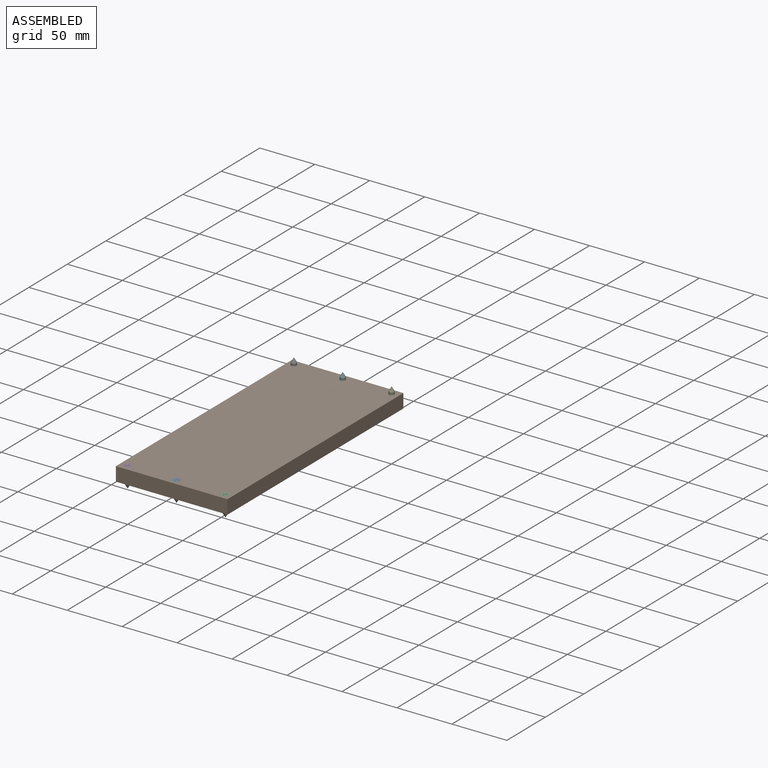
[diagram: assembled view]
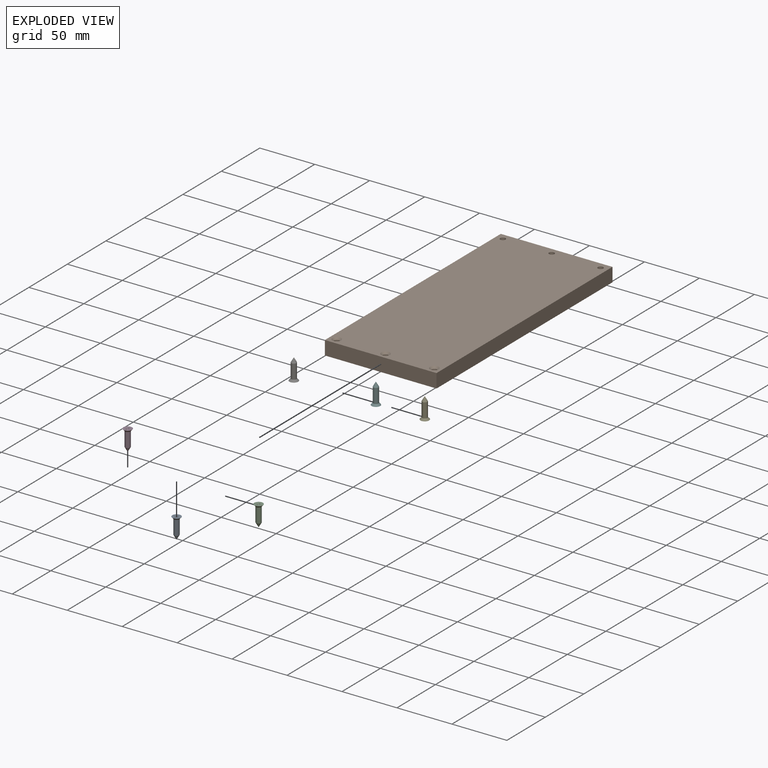
[diagram: exploded view]
GUIDED TOUR — MATED ASSEMBLY (Onshape document e38c5504253ca1b7ba571433, AutoMate assembly e38c5504253ca1b7ba571433_51430d996c4cda1efdbf5a8e_9bc8269e1de86b011c5c4cc2_default)

This assembly has 7 components, labeled P0..P6 below (a component is one placed occurrence of a part; the same part can appear more than once), held together by 2 mates. A mate is a constraint between two components; its type names the relative motion it leaves free:
  FASTENED — locks the two components together rigidly (no relative motion).
Axis/direction vectors are unit vectors and 'through' points are millimeter coordinates, both in the assembly's world frame.

MATES
  1. FASTENED "Fastened 1": P3 <-> P1, direction (0.000, 0.000, 1.000) through (-44.45, -107.95, 12.70) mm
  2. FASTENED "Fastened 2": P6 <-> P1, direction (0.000, 0.000, -1.000) through (-44.45, 107.95, 0.00) mm

ASSEMBLY ORDER
  1. P6 — the base component [order verified]
  2. P5 [order verified]
  3. P4 [order verified]
  4. P3 [order verified]
  5. P2 [order verified]
  6. P0 [order verified]
  7. P1 [order verified]
(P1 verified with a relaxed clearance tolerance: the source model stores slight part interference there.)
Order-tag legend:
  [order verified] — this step's position reverses a verified removal order: the component was checked to insert without passing through the ones already placed.

Of the 7 components, 1 carries the full construction recipe — the FeatureScript program that regenerates the part's solid from scratch; the rest are supplied as boundary geometry only.
Each toured component is shown spotlighted twice — in the assembled view, then in the exploded view, where a leader line traces a displaced component back to its assembled socket (saturated green if recipe-attached, orange if geometry-only; every other component desaturated gray) — followed by its recipe or geometry summary and the mates that hold it.
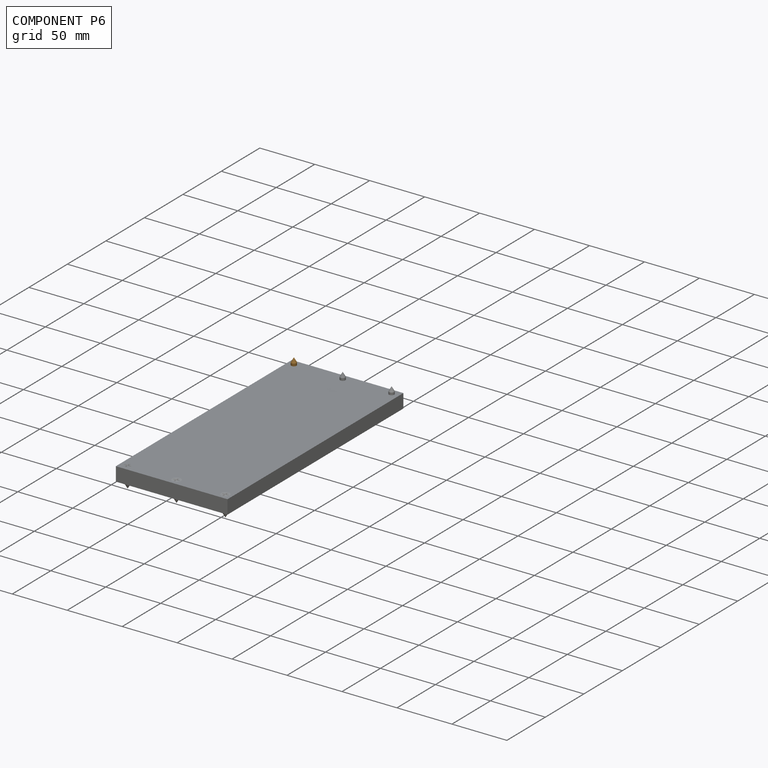
[diagram: component P6 — assembled]
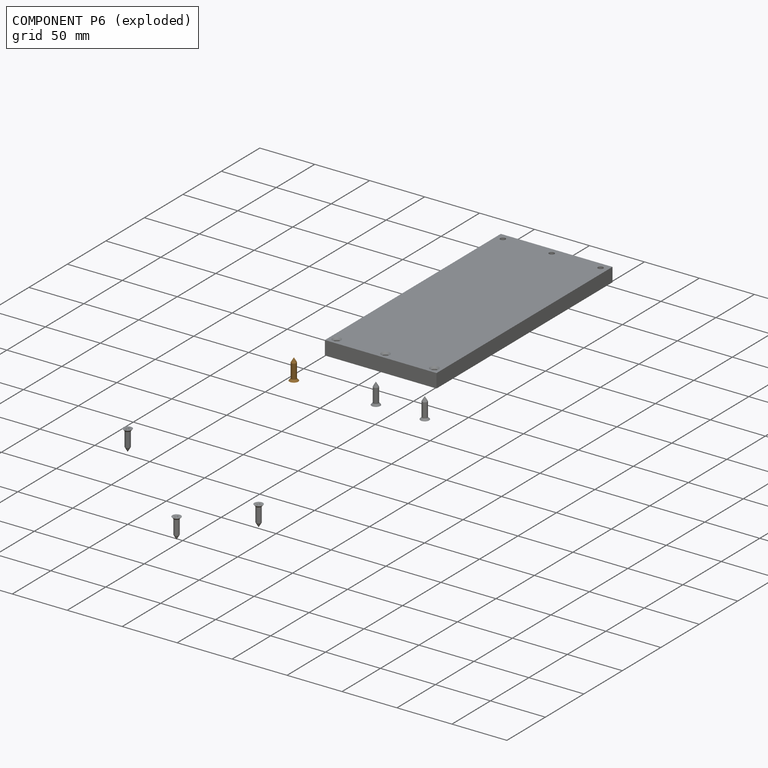
[diagram: component P6 — exploded]
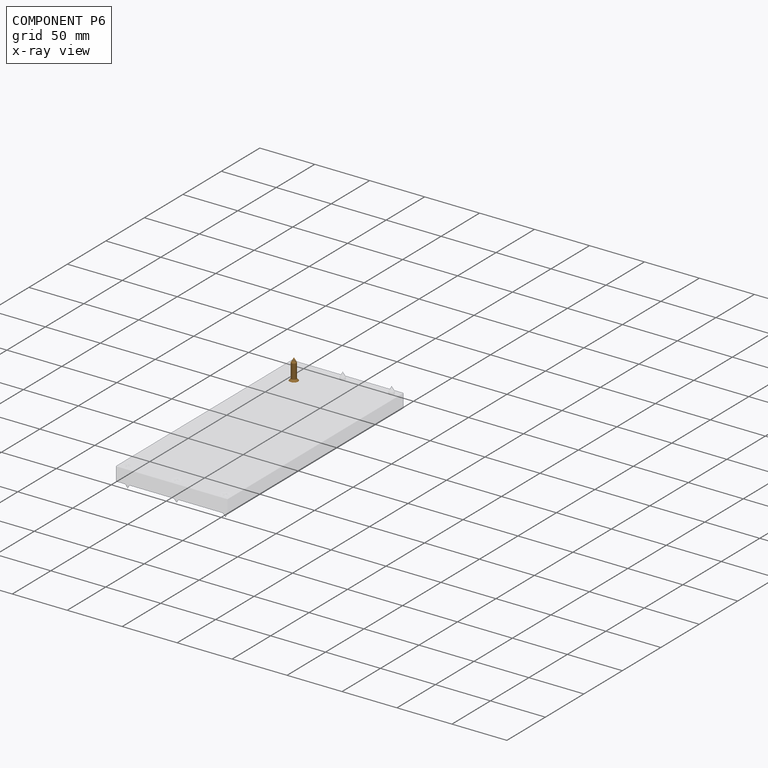
[diagram: component P6 — x-ray view]
COMPONENT P6 — geometry summary (no construction recipe available for this part):
  bounding box: 19.1 x 8.0 x 8.0 mm
  B-rep topology: 1 solid, 49 faces, 221 edges
  volume: 307 mm^3 (25% of its bounding box)
  symmetry: 4-fold rotationally symmetric about the z axis; mirror-symmetric across its x mid-plane, y mid-plane
Held by: FASTENED mate "Fastened 2" to P1.
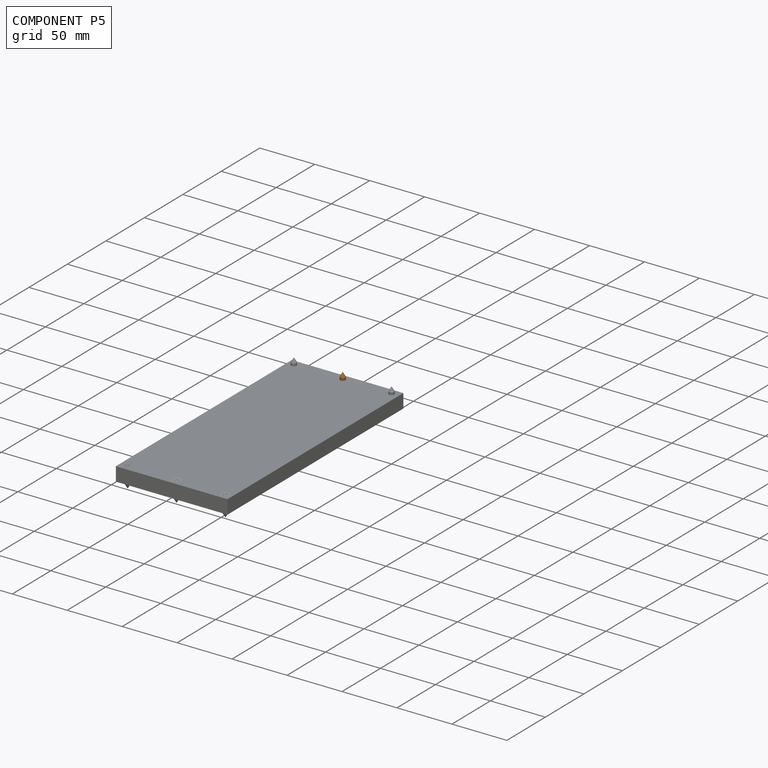
[diagram: component P5 — assembled]
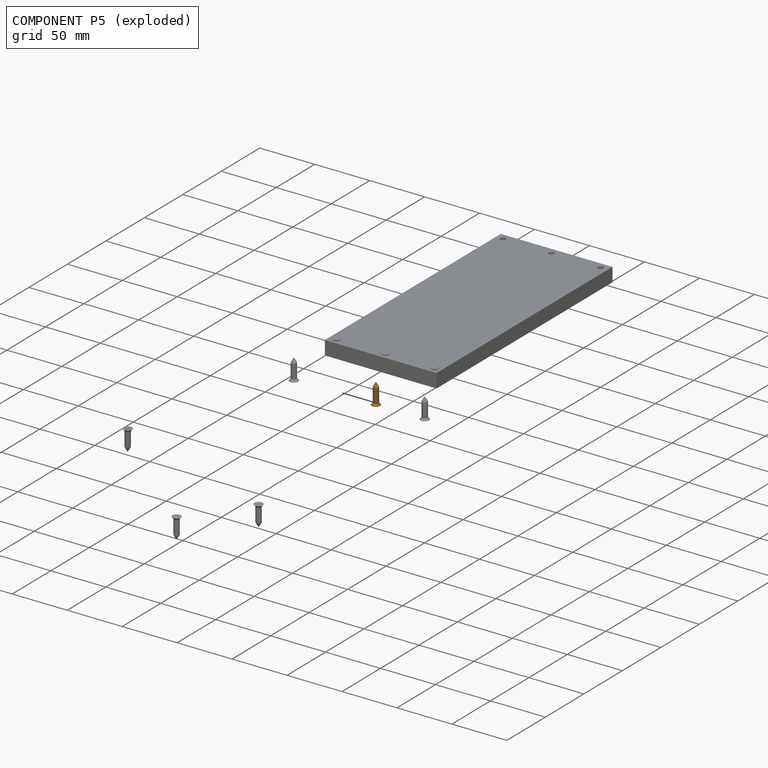
[diagram: component P5 — exploded]
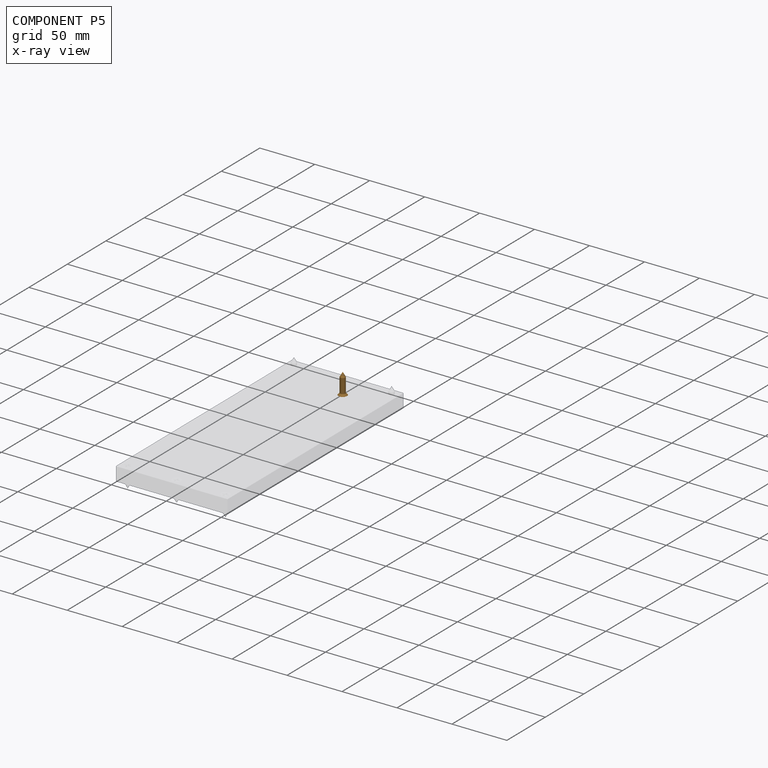
[diagram: component P5 — x-ray view]
COMPONENT P5 — geometry summary (no construction recipe available for this part):
  bounding box: 19.1 x 8.0 x 8.0 mm
  B-rep topology: 1 solid, 49 faces, 221 edges
  volume: 307 mm^3 (25% of its bounding box)
  symmetry: 4-fold rotationally symmetric about the z axis; mirror-symmetric across its x mid-plane, y mid-plane
Held by: no mates (free).
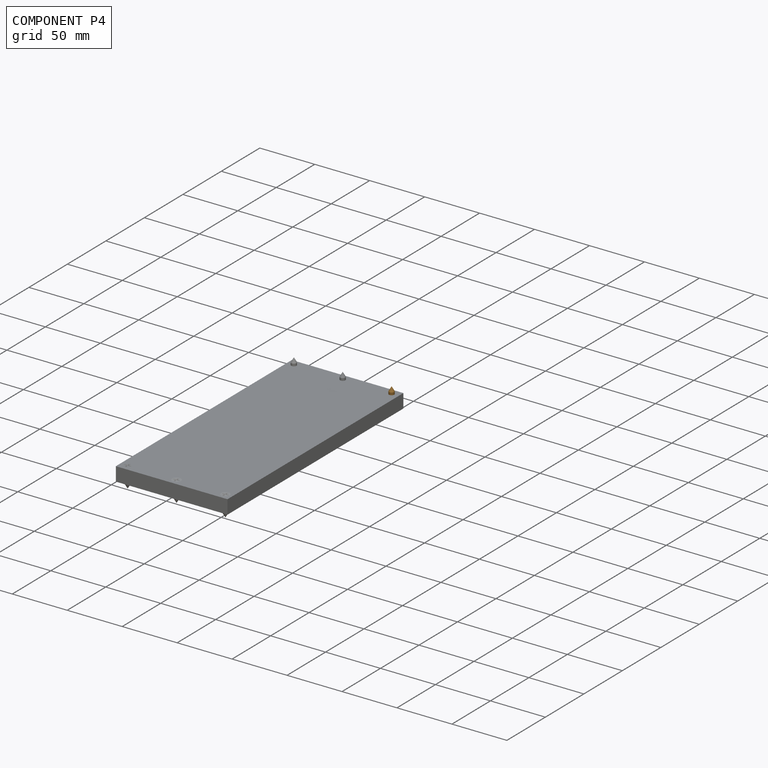
[diagram: component P4 — assembled]
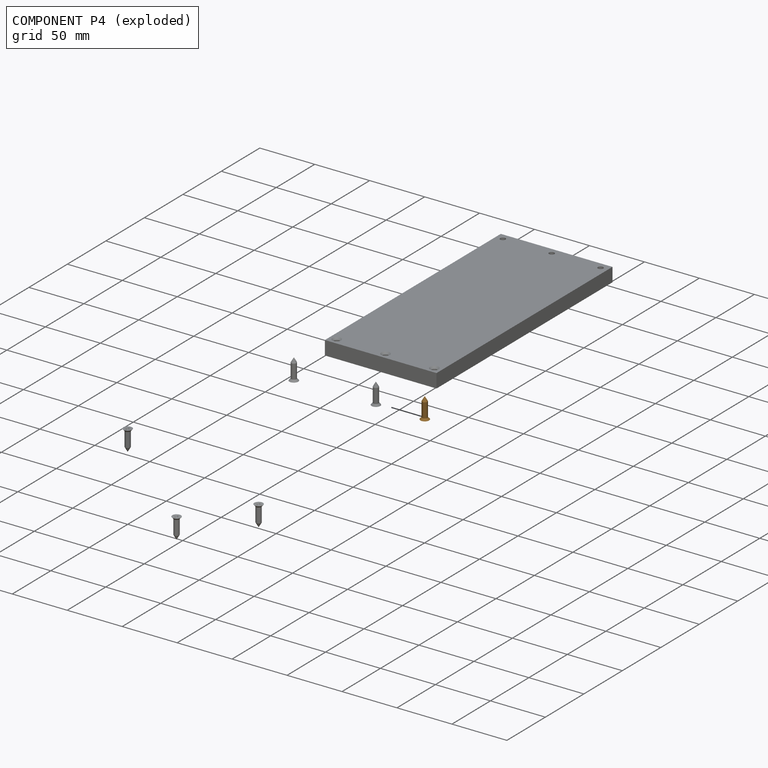
[diagram: component P4 — exploded]
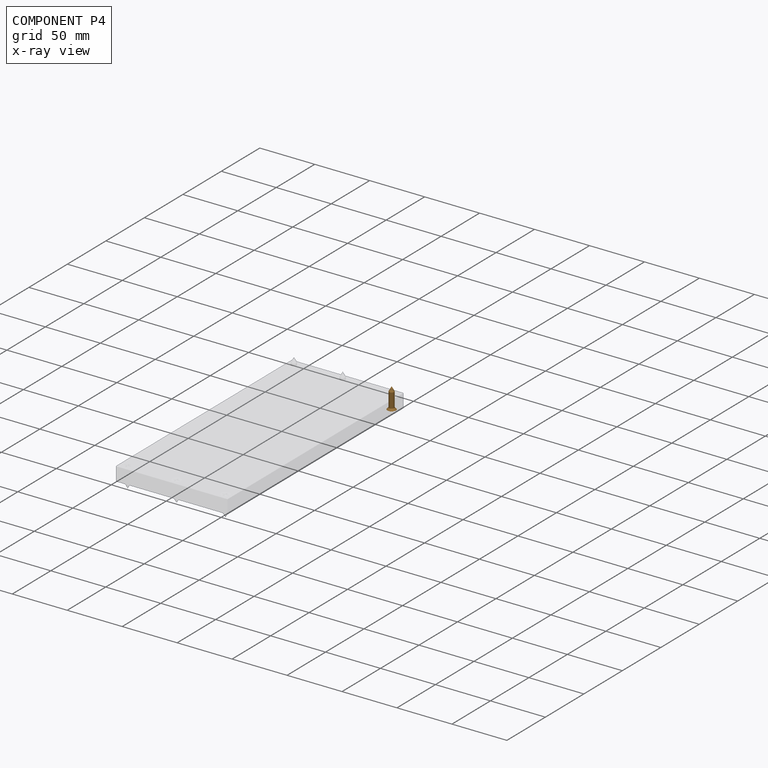
[diagram: component P4 — x-ray view]
COMPONENT P4 — geometry summary (no construction recipe available for this part):
  bounding box: 19.1 x 8.0 x 8.0 mm
  B-rep topology: 1 solid, 49 faces, 221 edges
  volume: 307 mm^3 (25% of its bounding box)
  symmetry: 4-fold rotationally symmetric about the z axis; mirror-symmetric across its x mid-plane, y mid-plane
Held by: no mates (free).
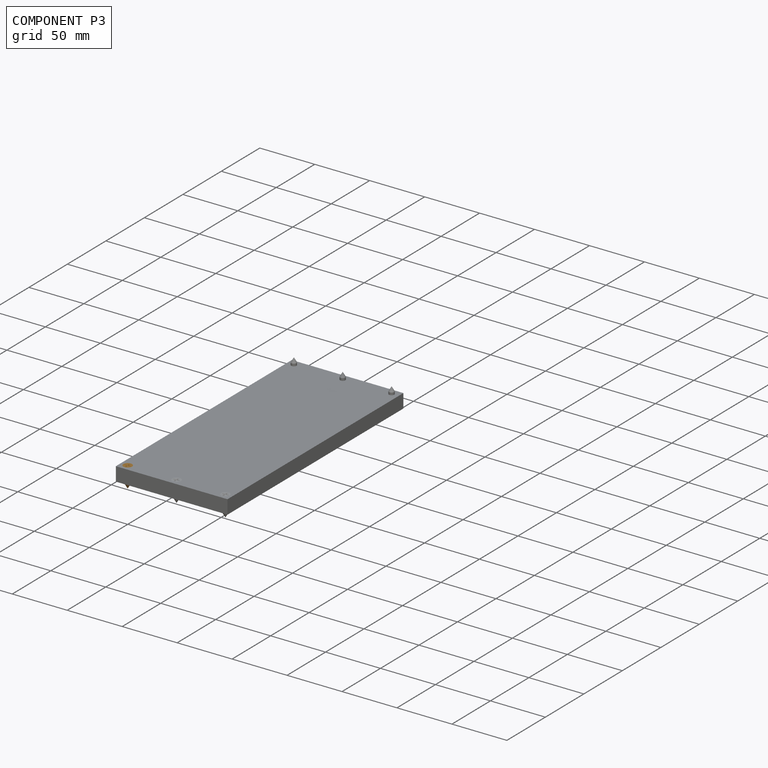
[diagram: component P3 — assembled]
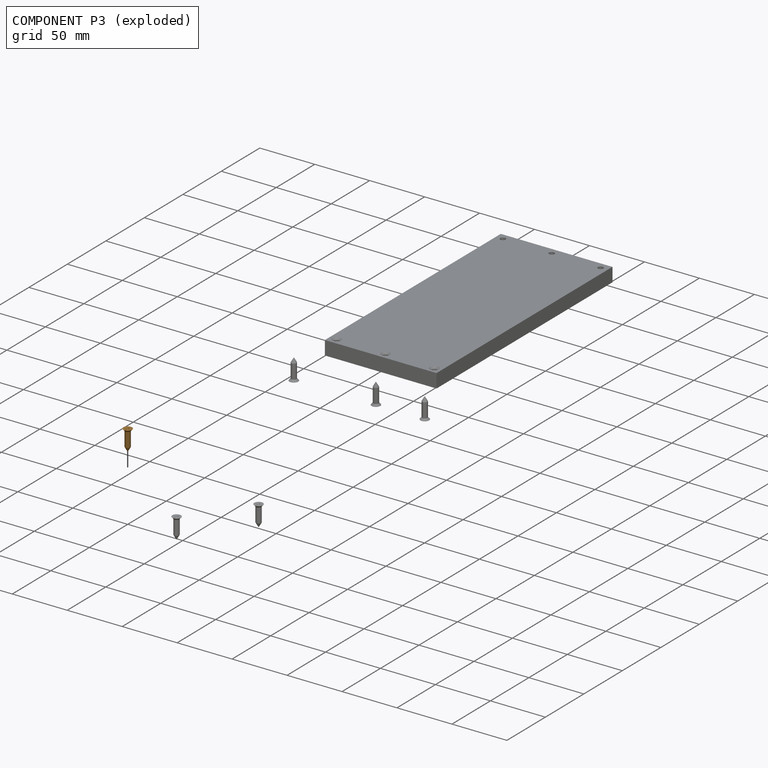
[diagram: component P3 — exploded]
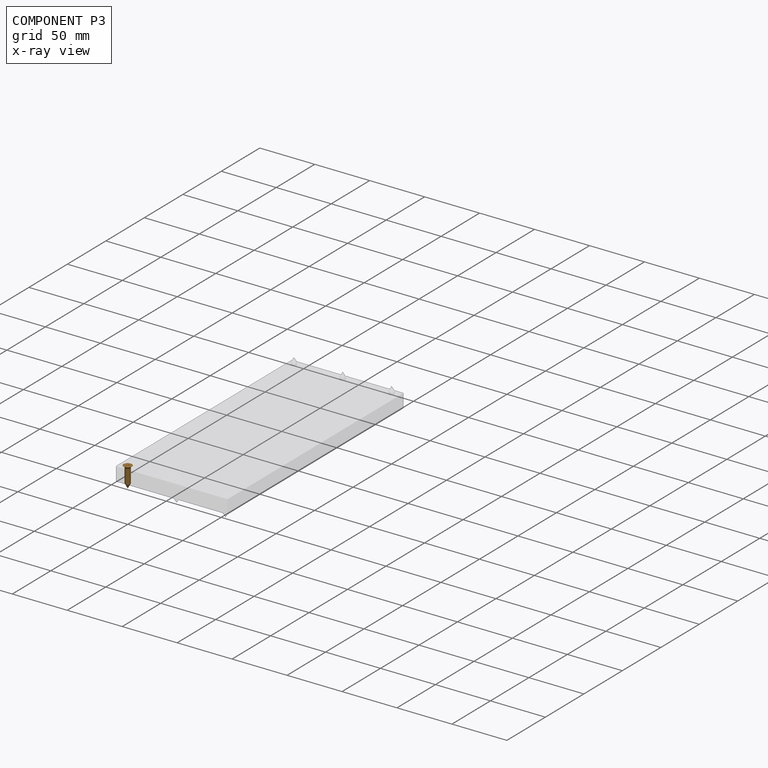
[diagram: component P3 — x-ray view]
COMPONENT P3 — geometry summary (no construction recipe available for this part):
  bounding box: 19.1 x 8.0 x 8.0 mm
  B-rep topology: 1 solid, 49 faces, 221 edges
  volume: 307 mm^3 (25% of its bounding box)
  symmetry: 4-fold rotationally symmetric about the z axis; mirror-symmetric across its x mid-plane, y mid-plane
Held by: FASTENED mate "Fastened 1" to P1.
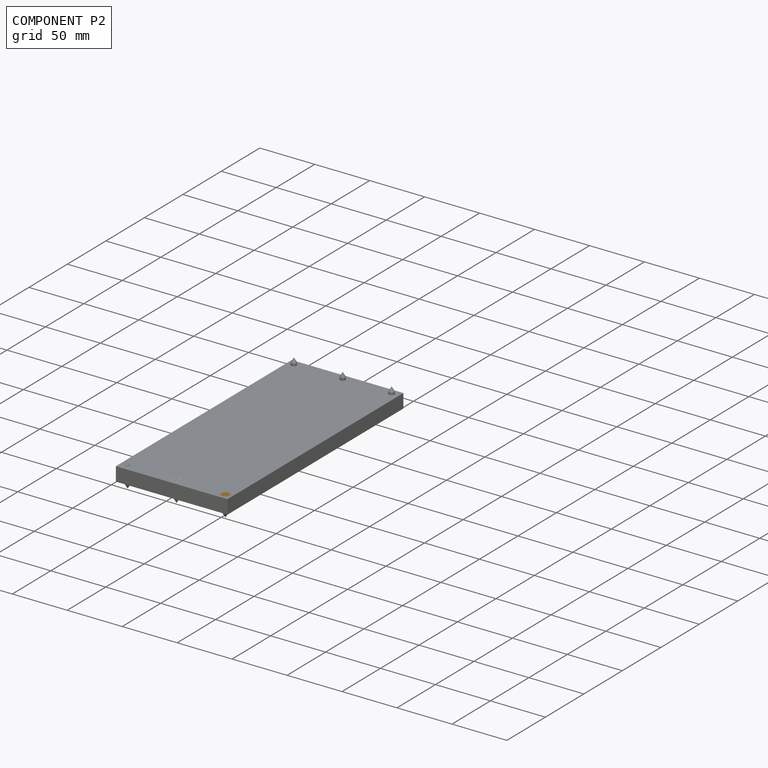
[diagram: component P2 — assembled]
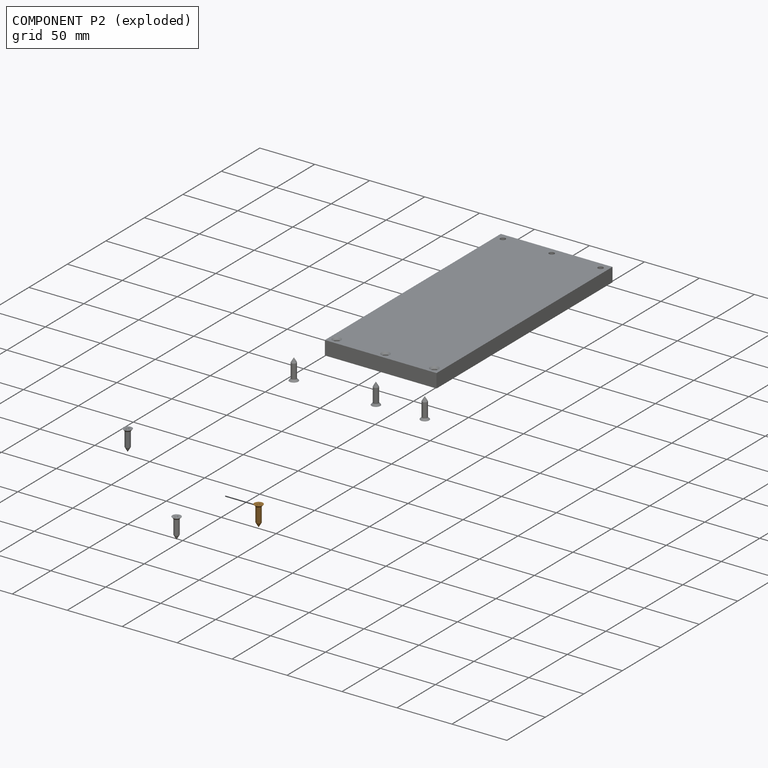
[diagram: component P2 — exploded]
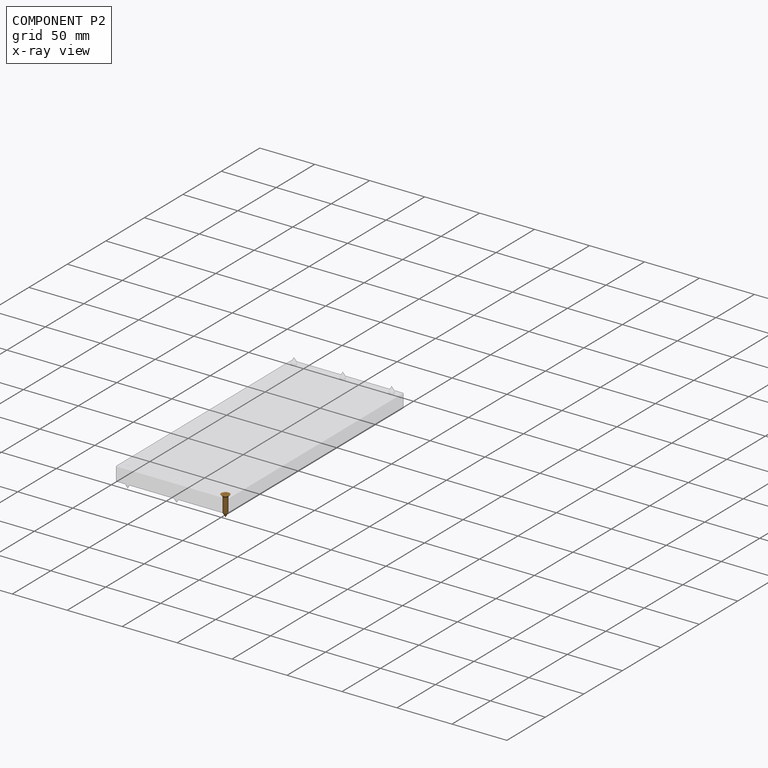
[diagram: component P2 — x-ray view]
COMPONENT P2 — geometry summary (no construction recipe available for this part):
  bounding box: 19.1 x 8.0 x 8.0 mm
  B-rep topology: 1 solid, 49 faces, 221 edges
  volume: 307 mm^3 (25% of its bounding box)
  symmetry: 4-fold rotationally symmetric about the z axis; mirror-symmetric across its x mid-plane, y mid-plane
Held by: no mates (free).
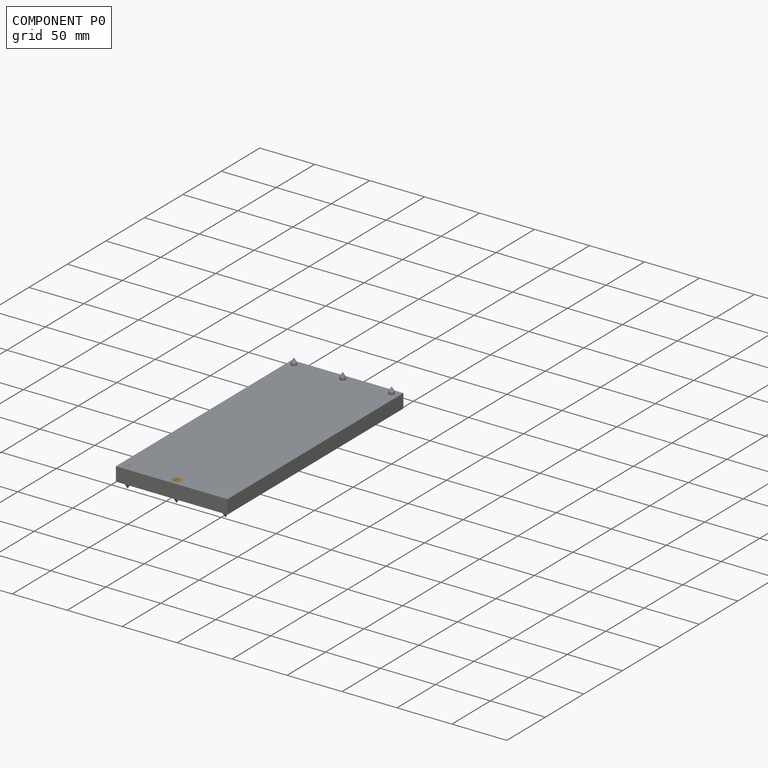
[diagram: component P0 — assembled]
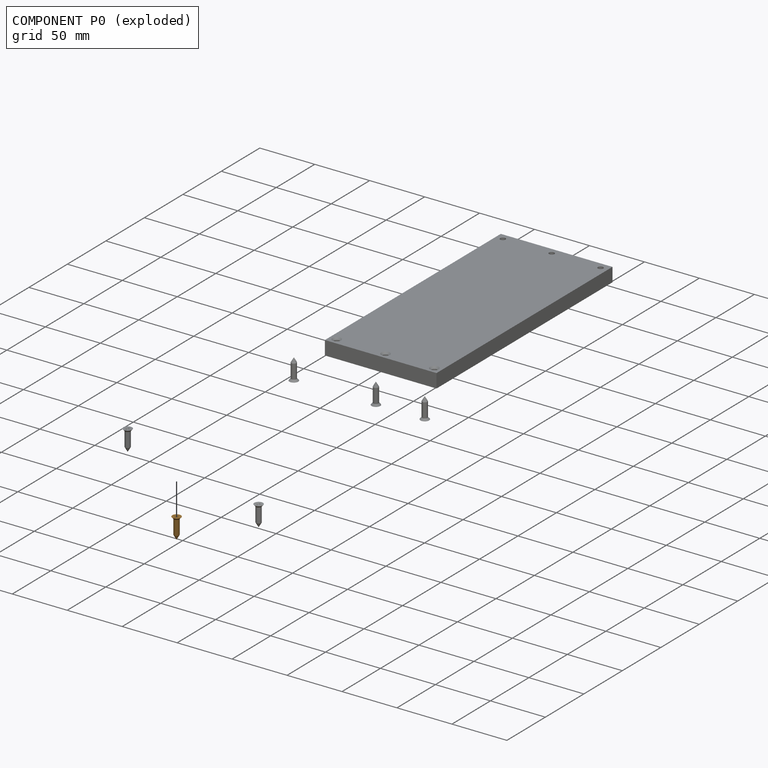
[diagram: component P0 — exploded]
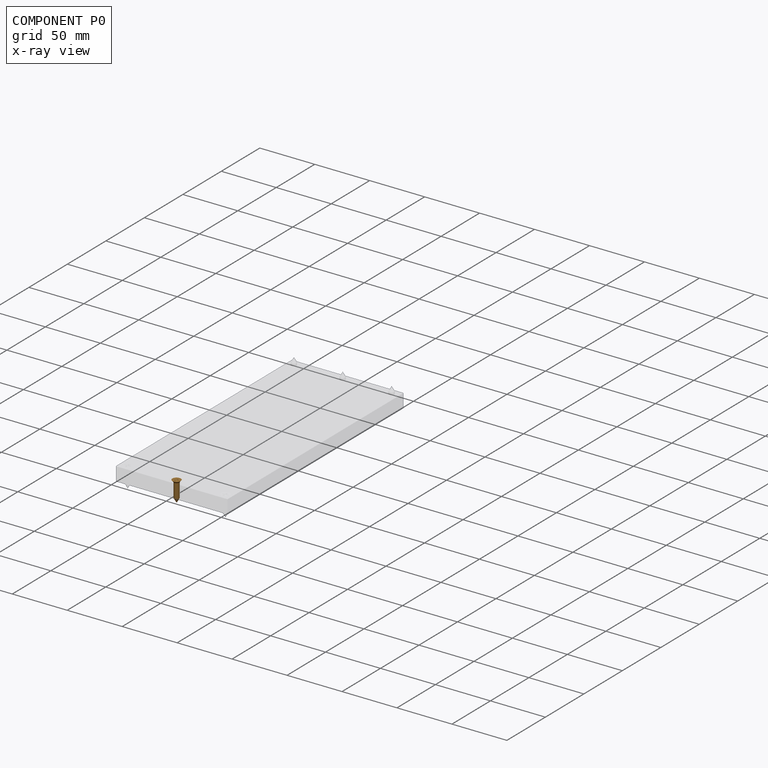
[diagram: component P0 — x-ray view]
COMPONENT P0 — geometry summary (no construction recipe available for this part):
  bounding box: 19.1 x 8.0 x 8.0 mm
  B-rep topology: 1 solid, 49 faces, 221 edges
  volume: 307 mm^3 (25% of its bounding box)
  symmetry: 4-fold rotationally symmetric about the z axis; mirror-symmetric across its x mid-plane, y mid-plane
Held by: no mates (free).
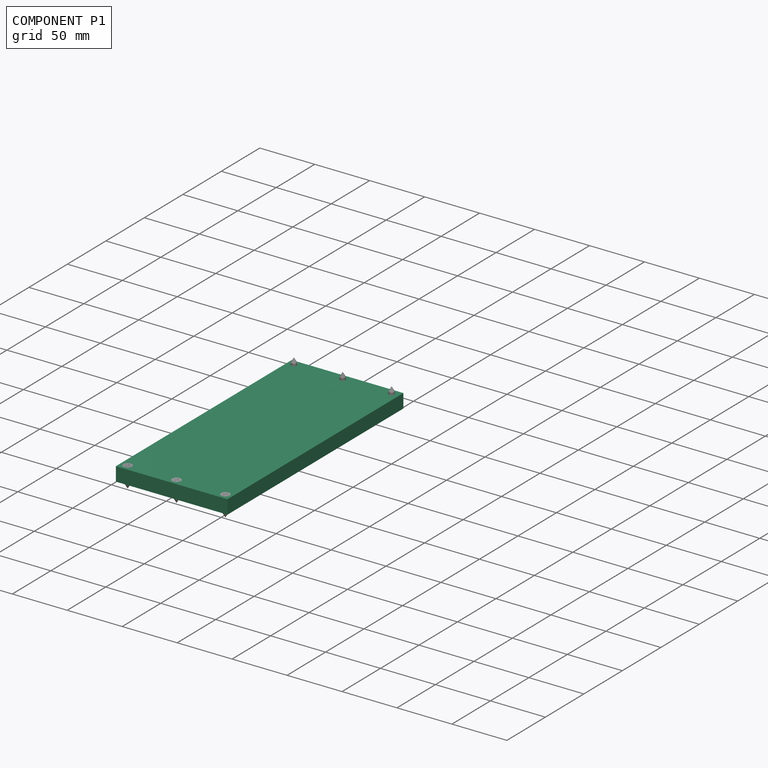
[diagram: component P1 — assembled]
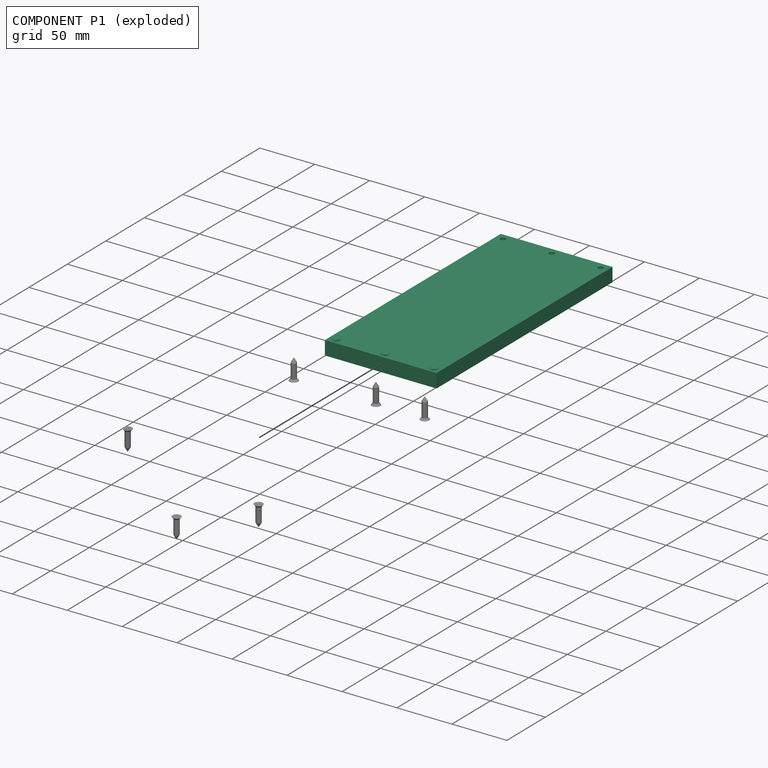
[diagram: component P1 — exploded]
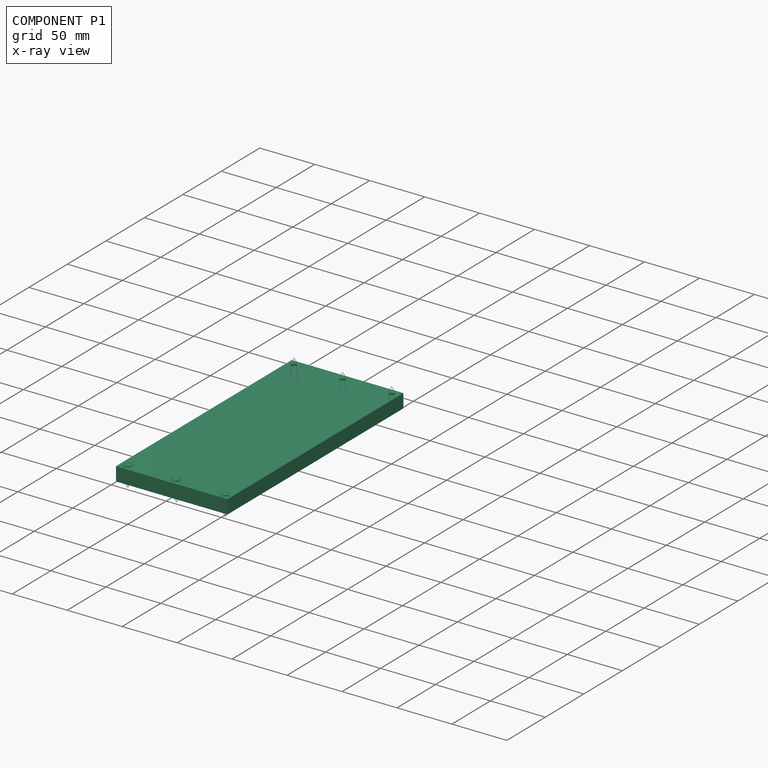
[diagram: component P1 — x-ray view]
COMPONENT P1 — recipe-attached (CADFS 00653592, mesh-verified: the recipe's output STEP matches this component's geometry to below the mesh-comparison resolution (tessellation chordal tolerance ~0.376 mm)).
Held by: FASTENED mate "Fastened 1" to P3; FASTENED mate "Fastened 2" to P6.
Construction recipe (FeatureScript — the CAD program that rebuilds this solid; sketch coordinates are in the units given by the * unit suffixes, e.g. mm):

FeatureScript 1511;
import(path : "onshape/std/geometry.fs", version : "1511.0");
import(path : "onshape/std/common.fs", version : "1511.0");
const mm = millimeter;
const VERTEX = EntityType.VERTEX;
const EDGE = EntityType.EDGE;
const FACE = EntityType.FACE;
const BODY = EntityType.BODY;
function v(x, y){return vector(x, y);}
function OD(order){return orderDisambiguation(order);}
function OSD(set){return originalSetDisambiguation(set);}
function TD(topology){return topologyDisambiguation(topology);}
function TDD(query){return trueDependencyDisambiguation(query);}
function sQuery(a, b, c) {return sketchEntityQuery(a, b, c);}

annotation { "Feature Type Name" : "Feature", "Feature Type Description" : "" }
export const myFeature = defineFeature(function(context is Context, id is Id, definition is map)
    precondition{}
    {
        {
            var Q0;
            Q0=qCreatedBy(makeId("Top.planeOp"),FACE);
            var sketch = newSketch(context, id + "F0", { "sketchPlane" : qUnion([Q0])});
            skLineSegment(sketch, "E0.bottom", {"start": v(50.8, 114.3) * mm, "end": v(-50.8, 114.3) * mm});
            skLineSegment(sketch, "E0.top", {"start": v(50.8, -114.3) * mm, "end": v(-50.8, -114.3) * mm});
            skLineSegment(sketch, "E0.left", {"start": v(50.8, 114.3) * mm, "end": v(50.8, -114.3) * mm});
            skLineSegment(sketch, "E0.right", {"start": v(-50.8, 114.3) * mm, "end": v(-50.8, -114.3) * mm});
            skPoint(sketch, "E0.middle", {"position": v(0, 0) * mm});
            skSolve(sketch);
        }
        {
            var Q0;
            Q0=makeQuery(id+"F0.imprint","IMPRINT",FACE,{"disambiguationData":[TD([[makeQuery(id+"F0.imprint","IMPRINT",EDGE,{"derivedFrom":sQuery(id+"F0.wireOp",EDGE,"E0.bottom")}),1.0]])]});
            extrude(context, id + "F1", {"entities" : qUnion([Q0]), "depth" : 12.7 * mm, "offsetDistance" : 25.4 * mm});
        }
        {
            var Q0;
            Q0=makeQuery(id+"F1.opExtrude","CAP_FACE",FACE,{"disambiguationData":[OSD([sQuery(id+"F0.wireOp",EDGE,"E0.bottom"),sQuery(id+"F0.wireOp",EDGE,"E0.top"),sQuery(id+"F0.wireOp",EDGE,"E0.left"),sQuery(id+"F0.wireOp",EDGE,"E0.right")])],"isStart":false});
            var sketch = newSketch(context, id + "F2", { "sketchPlane" : qUnion([Q0])});
            skLineSegment(sketch, "E1.0", {"start": v(-44.45, -107.95) * mm, "end": v(44.45, -107.95) * mm});
            skLineSegment(sketch, "E1.1", {"start": v(-44.45, 107.95) * mm, "end": v(-44.45, -107.95) * mm});
            skLineSegment(sketch, "E1.2", {"start": v(44.45, 107.95) * mm, "end": v(-44.45, 107.95) * mm});
            skLineSegment(sketch, "E1.3", {"start": v(44.45, -107.95) * mm, "end": v(44.45, 107.95) * mm});
            skLineSegment(sketch, "E2", {"start": v(-44.45, -95.25) * mm, "end": v(44.45, -95.25) * mm});
            skLineSegment(sketch, "E3", {"start": v(44.45, 95.25) * mm, "end": v(-44.45, 95.25) * mm});
            skLineSegment(sketch, "E4", {"start": v(76.94, 0) * mm, "end": v(-80.05, 0) * mm, "construction": true});
            skPoint(sketch, "E5", {"position": v(0, 107.95) * mm});
            skPoint(sketch, "E6", {"position": v(14.82, 95.25) * mm});
            skPoint(sketch, "E7", {"position": v(-14.82, 95.25) * mm});
            skPoint(sketch, "E8", {"position": v(0, -107.95) * mm});
            skPoint(sketch, "E9", {"position": v(14.82, -95.25) * mm});
            skPoint(sketch, "E10", {"position": v(-14.82, -95.25) * mm});
            skLineSegment(sketch, "E11", {"start": v(-44.45, 95.25) * mm, "end": v(-14.82, 95.25) * mm, "construction": true});
            skLineSegment(sketch, "E12", {"start": v(-14.82, 95.25) * mm, "end": v(14.82, 95.25) * mm, "construction": true});
            skLineSegment(sketch, "E13", {"start": v(14.82, 95.25) * mm, "end": v(44.45, 95.25) * mm, "construction": true});
            skSolve(sketch);
        }
        {
            var Q0;
            Q0=sQuery(id+"F2.wireOp",VERTEX,"E1.1.end");
            var Q1;
            Q1=sQuery(id+"F2.wireOp",VERTEX,"E8");
            var Q2;
            Q2=sQuery(id+"F2.wireOp",VERTEX,"E1.3.start");
            var Q3;
            Q3=makeQuery(id+"F1.opExtrude","SWEPT_BODY",BODY,{"disambiguationData":[OSD([sQuery(id+"F0.wireOp",EDGE,"E0.bottom"),sQuery(id+"F0.wireOp",EDGE,"E0.top"),sQuery(id+"F0.wireOp",EDGE,"E0.left"),sQuery(id+"F0.wireOp",EDGE,"E0.right")])]});
            hole(context, id + "F3", {"style" : HoleStyle.C_SINK, "endStyle" : HoleEndStyle.THROUGH, "holeDiameter" : 4.76 * mm, "cSinkDiameter" : 7.94 * mm, "cSinkAngle" : 85 * degree, "majorDiameter" : 6.35 * mm, "isTappedThrough" : true, "tappedDepth" : 12.7 * mm, "tapClearance" : 3, "locations" : qUnion([Q0, Q1, Q2]), "scope" : qUnion([Q3])});
        }
        {
            var Q0;
            Q0=makeQuery(id+"F1.opExtrude","CAP_FACE",FACE,{"disambiguationData":[OSD([sQuery(id+"F0.wireOp",EDGE,"E0.bottom"),sQuery(id+"F0.wireOp",EDGE,"E0.top"),sQuery(id+"F0.wireOp",EDGE,"E0.left"),sQuery(id+"F0.wireOp",EDGE,"E0.right")])],"isStart":true});
            var sketch = newSketch(context, id + "F4", { "sketchPlane" : qUnion([Q0])});
            skLineSegment(sketch, "E14.0", {"start": v(44.45, 107.95) * mm, "end": v(-44.45, 107.95) * mm});
            skLineSegment(sketch, "E14.1", {"start": v(44.45, -107.95) * mm, "end": v(44.45, 107.95) * mm});
            skLineSegment(sketch, "E14.2", {"start": v(-44.45, -107.95) * mm, "end": v(44.45, -107.95) * mm});
            skLineSegment(sketch, "E14.3", {"start": v(-44.45, 107.95) * mm, "end": v(-44.45, -107.95) * mm});
            skPoint(sketch, "E15", {"position": v(0, -107.95) * mm});
            skSolve(sketch);
        }
        {
            var Q0;
            Q0=sQuery(id+"F4.wireOp",VERTEX,"E14.1.start");
            var Q1;
            Q1=sQuery(id+"F4.wireOp",VERTEX,"E15");
            var Q2;
            Q2=sQuery(id+"F4.wireOp",VERTEX,"E14.3.end");
            var Q3;
            Q3=makeQuery(id+"F1.opExtrude","SWEPT_BODY",BODY,{"disambiguationData":[OSD([sQuery(id+"F0.wireOp",EDGE,"E0.bottom"),sQuery(id+"F0.wireOp",EDGE,"E0.top"),sQuery(id+"F0.wireOp",EDGE,"E0.left"),sQuery(id+"F0.wireOp",EDGE,"E0.right")])]});
            hole(context, id + "F5", {"style" : HoleStyle.C_SINK, "endStyle" : HoleEndStyle.THROUGH, "holeDiameter" : 4.76 * mm, "cSinkDiameter" : 7.94 * mm, "cSinkAngle" : 85 * degree, "majorDiameter" : 6.35 * mm, "isTappedThrough" : true, "tappedDepth" : 12.7 * mm, "tapClearance" : 3, "locations" : qUnion([Q0, Q1, Q2]), "scope" : qUnion([Q3])});
        }
    });
PROVENANCE & LICENSES
Assembly (occurrences, transforms, mates, per-part STEP geometry): AutoMate dataset, Zenodo record 7776208, CC0.
Construction recipes: CADFS (HuggingFace VladPyatov/CADFS, CC-BY-4.0, layered over the ABC dataset), FeatureScript reconstruction programs keyed by ABC model id.
Join: ABC meta listings map ABC model id -> Onshape documentId; within a shared document, parts are matched by geometric signature (bounding-box dims + volume at 0.1% relative tolerance, exact B-rep face/solid counts).
Verification: 1 of this assembly's 7 components carries a recipe attachment, and every attachment is mesh-verified: the CADFS STEP and the AutoMate member STEP were compared as meshes in their shared local frame (symmetric sampled-point-to-mesh distance); worst across the 1 attachment: below the mesh-comparison resolution (tessellation chordal tolerance ~0.376 mm) on a 250 mm part.
Renders: orthographic iso camera (az 35 / el 25); the floor grid conveys scale (grid pitch printed in each image; no ruler). In the exploded view each component is displaced by its stored offset vector: the offsets alone carry the explosion direction (mate normal/axis signs are not orientation cues and do not encode it), and separation distances are assigned per mate-chain, not proportionally to assembly-order depth.
